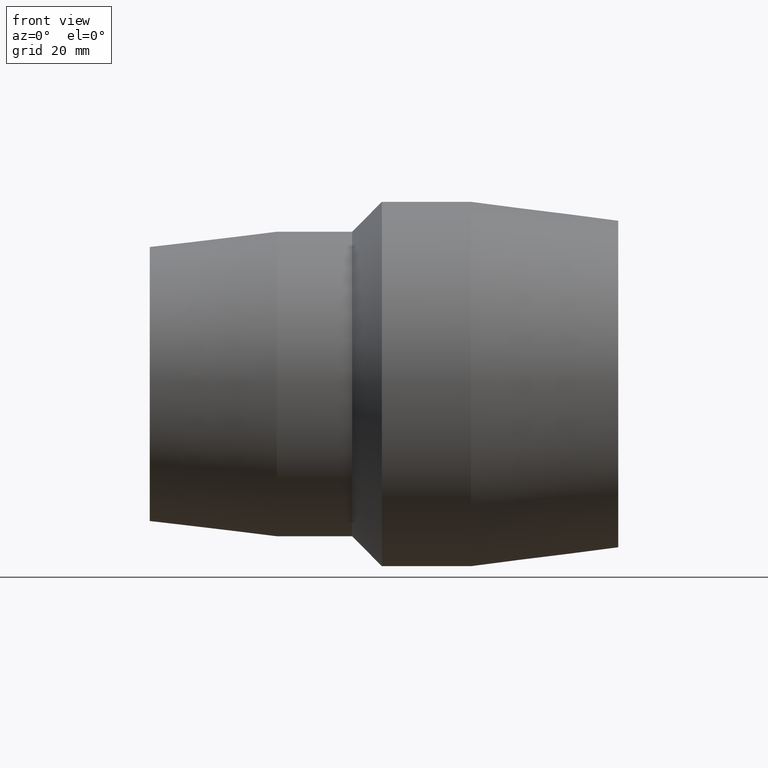
[diagram: clean part render]
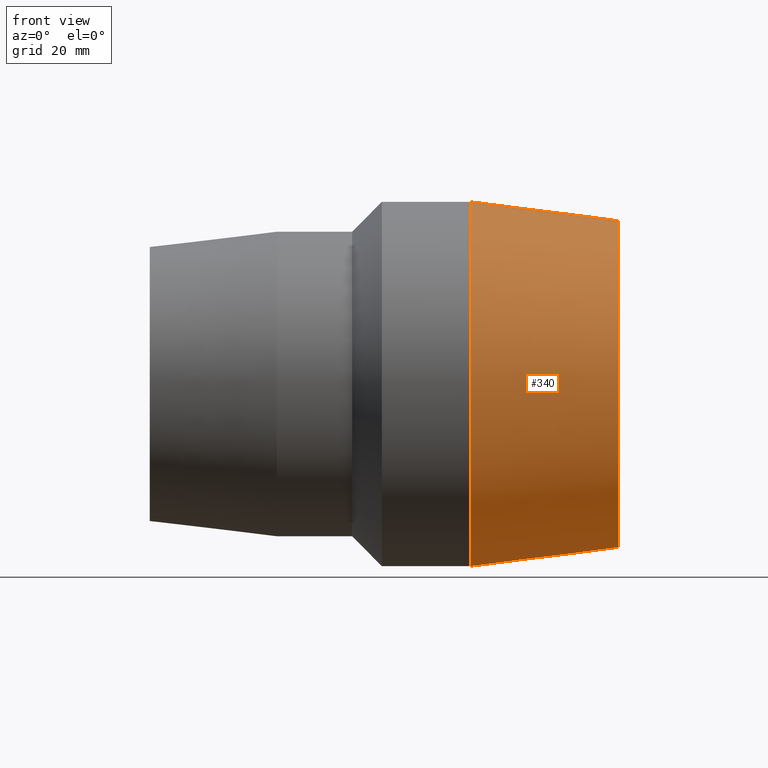
[diagram: same view with one face highlighted and labeled with its STEP entity id]
A machine part, front view. The second image highlights one B-rep face of the part: STEP entity #340.
In plain terms, the highlighted conical surface has half-angle 7.054 deg.
Its self-contained STEP definition (entity closure, byte-faithful):
#15=B_SPLINE_CURVE_WITH_KNOTS('',3,(#561,#562,#563,#564,#565,#566,#567,
#568,#569,#570,#571,#572,#573,#574,#575,#576,#577,#578,#579,#580,#581,#582,
#583,#584,#585,#586,#587,#588,#589,#590,#591,#592,#593,#594),
 .UNSPECIFIED.,.T.,.F.,(4,2,2,2,2,2,2,2,2,2,2,2,2,2,2,2,4),(0.,0.34395620043497,
0.687912400869939,1.03348761298647,1.379062825103,1.72463803721953,2.07021324933607,
2.41416944977103,2.758125650206,3.12198560109004,3.48584555197407,3.84258252450327,
4.19931949703247,4.55605646956167,4.91279344209087,5.2766533929749,5.64051334385893),
 .UNSPECIFIED.);
#20=CONICAL_SURFACE('',#387,46.55,7.0537751303925);
#38=FACE_BOUND('',#127,.T.);
#39=FACE_BOUND('',#128,.T.);
#82=FACE_OUTER_BOUND('',#126,.T.);
#126=EDGE_LOOP('',(#279));
#127=EDGE_LOOP('',(#280));
#128=EDGE_LOOP('',(#281));
#173=CIRCLE('',#386,49.);
#174=CIRCLE('',#388,44.1);
#195=VERTEX_POINT('',#560);
#204=VERTEX_POINT('',#652);
#205=VERTEX_POINT('',#655);
#226=EDGE_CURVE('',#195,#195,#15,.T.);
#235=EDGE_CURVE('',#204,#204,#173,.T.);
#236=EDGE_CURVE('',#205,#205,#174,.T.);
#279=ORIENTED_EDGE('',*,*,#236,.F.);
#280=ORIENTED_EDGE('',*,*,#226,.T.);
#281=ORIENTED_EDGE('',*,*,#235,.T.);
#340=ADVANCED_FACE('',(#82,#38,#39),#20,.T.);
#386=AXIS2_PLACEMENT_3D('',#653,#476,#477);
#387=AXIS2_PLACEMENT_3D('',#654,#478,#479);
#388=AXIS2_PLACEMENT_3D('',#656,#480,#481);
#476=DIRECTION('center_axis',(1.,1.83697019872103E-16,0.));
#477=DIRECTION('ref_axis',(0.,0.,-1.));
#478=DIRECTION('center_axis',(-1.,-1.83697019872103E-16,0.));
#479=DIRECTION('ref_axis',(-1.72213011695957E-16,1.,0.));
#480=DIRECTION('center_axis',(1.,1.83697019872103E-16,0.));
#481=DIRECTION('ref_axis',(0.,0.,-1.));
#560=CARTESIAN_POINT('',(48.2137064034527,44.9712083842015,-9.33381737614449));
#561=CARTESIAN_POINT('Ctrl Pts',(48.2137064034524,44.9712083842015,-9.3338173761445));
#562=CARTESIAN_POINT('Ctrl Pts',(49.3515494391714,44.8333526035583,-9.30520527682581));
#563=CARTESIAN_POINT('Ctrl Pts',(50.5649429282076,44.7350401600316,-9.04921684228865));
#564=CARTESIAN_POINT('Ctrl Pts',(52.7917258281062,44.6420573218464,-8.06997832187232));
#565=CARTESIAN_POINT('Ctrl Pts',(53.8050006376694,44.6447155043253,-7.34672312148968));
#566=CARTESIAN_POINT('Ctrl Pts',(55.4027529766413,44.6861334591937,-5.69496967484756));
#567=CARTESIAN_POINT('Ctrl Pts',(56.094112377947,44.7273753561429,-4.6538380592575));
#568=CARTESIAN_POINT('Ctrl Pts',(57.0095122632139,44.792294755975,-2.38234177724648));
#569=CARTESIAN_POINT('Ctrl Pts',(57.2335766378065,44.8135220826957,-1.15191737372177));
#570=CARTESIAN_POINT('Ctrl Pts',(57.2335766378065,44.8135220826957,1.15191737372177));
#571=CARTESIAN_POINT('Ctrl Pts',(57.0095122632139,44.792294755975,2.38234177724648));
#572=CARTESIAN_POINT('Ctrl Pts',(56.094112377947,44.7273753561429,4.65383805925749));
#573=CARTESIAN_POINT('Ctrl Pts',(55.4027529766413,44.6861334591937,5.69496967484756));
#574=CARTESIAN_POINT('Ctrl Pts',(53.8050006376694,44.6447155043253,7.34672312148968));
#575=CARTESIAN_POINT('Ctrl Pts',(52.7917258281062,44.6420573218464,8.06997832187232));
#576=CARTESIAN_POINT('Ctrl Pts',(50.5649429282076,44.7350401600316,9.04921684228865));
#577=CARTESIAN_POINT('Ctrl Pts',(49.3515494391714,44.8333526035583,9.30520527682581));
#578=CARTESIAN_POINT('Ctrl Pts',(47.0100196823906,45.1170414801321,9.36408517489219));
#579=CARTESIAN_POINT('Ctrl Pts',(45.7318684592234,45.3261098535047,9.14520376562295));
#580=CARTESIAN_POINT('Ctrl Pts',(43.3865219786432,45.8009325594546,8.20281751581427));
#581=CARTESIAN_POINT('Ctrl Pts',(42.3185953318503,46.0637722604091,7.47966679449737));
#582=CARTESIAN_POINT('Ctrl Pts',(40.6478060586383,46.5116184611611,5.81309794842849));
#583=CARTESIAN_POINT('Ctrl Pts',(39.9265628580757,46.7272536877518,4.76390076933884));
#584=CARTESIAN_POINT('Ctrl Pts',(38.9658586603202,47.0244155377933,2.45214724369919));
#585=CARTESIAN_POINT('Ctrl Pts',(38.7267709607945,47.1035056134371,1.189123241764));
#586=CARTESIAN_POINT('Ctrl Pts',(38.7267709607945,47.1035056134371,-1.189123241764));
#587=CARTESIAN_POINT('Ctrl Pts',(38.9658586603202,47.0244155377933,-2.45214724369919));
#588=CARTESIAN_POINT('Ctrl Pts',(39.9265628580757,46.7272536877518,-4.76390076933883));
#589=CARTESIAN_POINT('Ctrl Pts',(40.6478060586383,46.5116184611611,-5.81309794842848));
#590=CARTESIAN_POINT('Ctrl Pts',(42.3185953318503,46.0637722604091,-7.47966679449737));
#591=CARTESIAN_POINT('Ctrl Pts',(43.3865219786432,45.8009325594546,-8.20281751581428));
#592=CARTESIAN_POINT('Ctrl Pts',(45.7318684592234,45.3261098535047,-9.14520376562295));
#593=CARTESIAN_POINT('Ctrl Pts',(47.0100196823906,45.1170414801321,-9.36408517489219));
#594=CARTESIAN_POINT('Ctrl Pts',(48.2137064034524,44.9712083842015,-9.3338173761445));
#652=CARTESIAN_POINT('',(23.4,49.,0.));
#653=CARTESIAN_POINT('Origin',(23.4,1.58714225169497E-14,0.));
#654=CARTESIAN_POINT('Origin',(43.2,1.95086235104173E-14,0.));
#655=CARTESIAN_POINT('',(63.,44.1,0.));
#656=CARTESIAN_POINT('Origin',(63.,2.3145824503885E-14,0.));